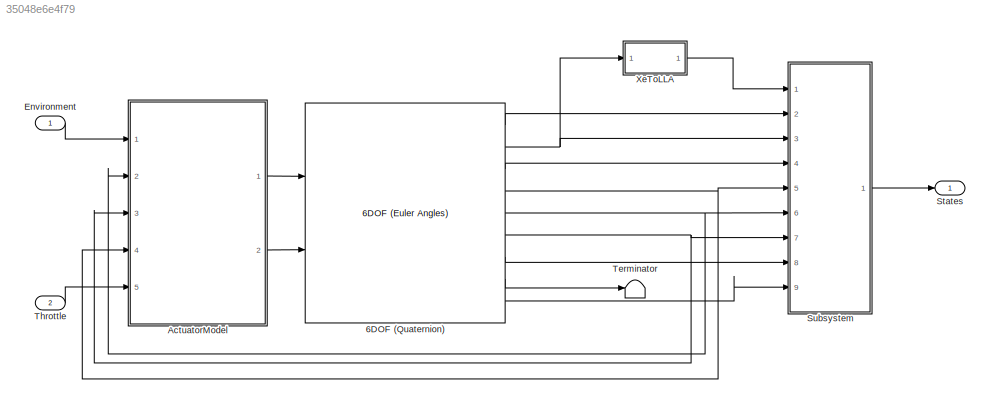
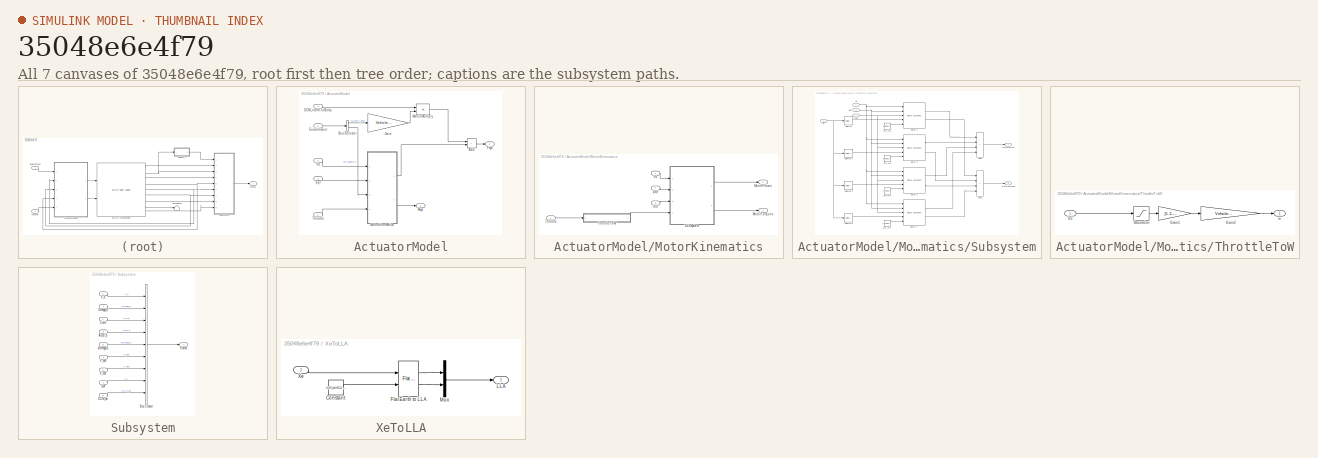
[diagram: thumbnail index - all 7 canvases of the model, root first then tree order]
MODEL slx_35048e6e4f79
KIND model
CONFIG AbsTol = auto
CONFIG EnableMultiTasking = on
CONFIG FixedStep = Ts
CONFIG MaxStep = auto
CONFIG MinStep = auto
CONFIG RelTol = 1e-3
CONFIG SampleTimeConstraint = Unconstrained
CONFIG SolverName = ode3
CONFIG StartTime = 0.0
CONFIG StopTime = 10.0
BLOCK [Reference] 6DOF (Quaternion)  REF=shared6dof/6DOF (Euler Angles)
  Ports = [2, 9]
  SourceBlock = shared6dof/6DOF (Euler Angles)
  SourceProductBaseCode = AE,PW,MT,UV,VE,VP
  SourceType = 6DOF EoM (Body Axis)
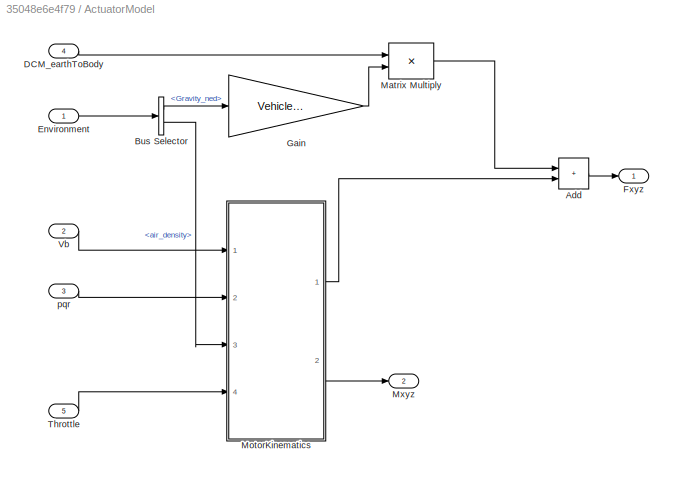
BLOCK [SubSystem] ActuatorModel
  Ports = [5, 2]
  RequestExecContextInheritance = off
BLOCK [Sum] ActuatorModel/Add
  IconShape = rectangular
  Ports = [2, 1]
BLOCK [BusSelector] ActuatorModel/Bus Selector
  OutputSignals = Gravity_ned,AtmosphereBus.air_density
  Ports = [1, 2]
BLOCK [Inport] ActuatorModel/DCM_earthToBody
  Port = 4
BLOCK [Inport] ActuatorModel/Environment
  OutDataTypeStr = Bus: EnvironmentBus
BLOCK [Outport] ActuatorModel/Fxyz
BLOCK [Gain] ActuatorModel/Gain
  Gain = Vehicle.Airframe.mass
BLOCK [Product] ActuatorModel/Matrix Multiply
  Multiplication = Matrix(*)
  Ports = [2, 1]
BLOCK [SubSystem] ActuatorModel/MotorKinematics
  Ports = [4, 2]
  RequestExecContextInheritance = off
BLOCK [Outport] ActuatorModel/MotorKinematics/MotorForces
BLOCK [Outport] ActuatorModel/MotorKinematics/MotorTorques
  Port = 2
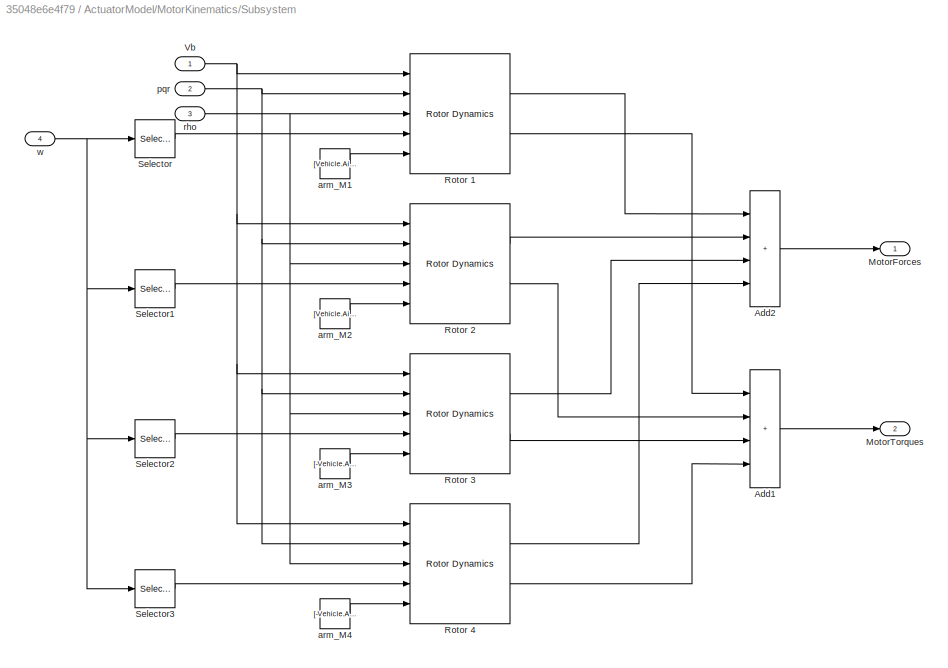
BLOCK [SubSystem] ActuatorModel/MotorKinematics/Subsystem
  Ports = [4, 2]
  RequestExecContextInheritance = off
BLOCK [Sum] ActuatorModel/MotorKinematics/Subsystem/Add1
  IconShape = rectangular
  Inputs = ++++
  Ports = [4, 1]
BLOCK [Sum] ActuatorModel/MotorKinematics/Subsystem/Add2
  IconShape = rectangular
  Inputs = ++++
  Ports = [4, 1]
BLOCK [Outport] ActuatorModel/MotorKinematics/Subsystem/MotorForces
BLOCK [Outport] ActuatorModel/MotorKinematics/Subsystem/MotorTorques
  Port = 2
BLOCK [Reference] ActuatorModel/MotorKinematics/Subsystem/Rotor 1  REF=dynamicsLibrary/Rotor Dynamics
  Ports = [5, 2]
  SourceBlock = dynamicsLibrary/Rotor Dynamics
BLOCK [Reference] ActuatorModel/MotorKinematics/Subsystem/Rotor 2  REF=dynamicsLibrary/Rotor Dynamics
  Ports = [5, 2]
  SourceBlock = dynamicsLibrary/Rotor Dynamics
BLOCK [Reference] ActuatorModel/MotorKinematics/Subsystem/Rotor 3  REF=dynamicsLibrary/Rotor Dynamics
  Ports = [5, 2]
  SourceBlock = dynamicsLibrary/Rotor Dynamics
BLOCK [Reference] ActuatorModel/MotorKinematics/Subsystem/Rotor 4  REF=dynamicsLibrary/Rotor Dynamics
  Ports = [5, 2]
  SourceBlock = dynamicsLibrary/Rotor Dynamics
BLOCK [Selector] ActuatorModel/MotorKinematics/Subsystem/Selector
  IndexOptions = Index vector (dialog)
  Indices = 1
  InputPortWidth = 4
  OutputSizes = 1
  Ports = [1, 1]
BLOCK [Selector] ActuatorModel/MotorKinematics/Subsystem/Selector1
  IndexOptions = Index vector (dialog)
  Indices = 2
  InputPortWidth = 4
  OutputSizes = 1
  Ports = [1, 1]
BLOCK [Selector] ActuatorModel/MotorKinematics/Subsystem/Selector2
  IndexOptions = Index vector (dialog)
  Indices = 3
  InputPortWidth = 4
  OutputSizes = 1
  Ports = [1, 1]
BLOCK [Selector] ActuatorModel/MotorKinematics/Subsystem/Selector3
  IndexOptions = Index vector (dialog)
  Indices = 4
  InputPortWidth = 4
  OutputSizes = 1
  Ports = [1, 1]
BLOCK [Inport] ActuatorModel/MotorKinematics/Subsystem/Vb
BLOCK [Constant] ActuatorModel/MotorKinematics/Subsystem/arm_M1
  Value = [Vehicle.Airframe.orthagPropDistance Vehicle.Airframe.orthagPropDistance Vehicle.Airframe.propHeight]
BLOCK [Constant] ActuatorModel/MotorKinematics/Subsystem/arm_M2
  Value = [Vehicle.Airframe.orthagPropDistance -Vehicle.Airframe.orthagPropDistance Vehicle.Airframe.propHeight]
BLOCK [Constant] ActuatorModel/MotorKinematics/Subsystem/arm_M3
  Value = [-Vehicle.Airframe.orthagPropDistance Vehicle.Airframe.orthagPropDistance Vehicle.Airframe.propHeight]
BLOCK [Constant] ActuatorModel/MotorKinematics/Subsystem/arm_M4
  Value = [-Vehicle.Airframe.orthagPropDistance -Vehicle.Airframe.orthagPropDistance Vehicle.Airframe.propHeight]
BLOCK [Inport] ActuatorModel/MotorKinematics/Subsystem/pqr
  Port = 2
BLOCK [Inport] ActuatorModel/MotorKinematics/Subsystem/rho
  Port = 3
BLOCK [Inport] ActuatorModel/MotorKinematics/Subsystem/w
  Port = 4
BLOCK [Inport] ActuatorModel/MotorKinematics/Throttle
  Port = 4
BLOCK [SubSystem] ActuatorModel/MotorKinematics/ThrottleToW
  Ports = [1, 1]
  RequestExecContextInheritance = off
BLOCK [Gain] ActuatorModel/MotorKinematics/ThrottleToW/Gain1
  Gain = [1 -1 -1 1]
BLOCK [Gain] ActuatorModel/MotorKinematics/ThrottleToW/Gain2
  Gain = Vehicle.Motor.Throttle2w
BLOCK [Inport] ActuatorModel/MotorKinematics/ThrottleToW/In1
BLOCK [Saturate] ActuatorModel/MotorKinematics/ThrottleToW/Saturation
  LinearizeAsGain = off
  LowerLimit = Vehicle.Motor.minSignal
  UpperLimit = Vehicle.Motor.maxSignal
BLOCK [Outport] ActuatorModel/MotorKinematics/ThrottleToW/w
BLOCK [Inport] ActuatorModel/MotorKinematics/Vb
BLOCK [Inport] ActuatorModel/MotorKinematics/pqr
  Port = 2
BLOCK [Inport] ActuatorModel/MotorKinematics/rho
  Port = 3
BLOCK [Outport] ActuatorModel/Mxyz
  Port = 2
BLOCK [Inport] ActuatorModel/Throttle
  Port = 5
BLOCK [Inport] ActuatorModel/Vb
  Port = 2
BLOCK [Inport] ActuatorModel/pqr
  Port = 3
BLOCK [Inport] Environment
  Interpolate = off
  OutDataTypeStr = Bus: EnvironmentBus
BLOCK [Outport] States
  OutDataTypeStr = Bus: StatesBus
BLOCK [SubSystem] Subsystem
  Ports = [9, 1]
  RequestExecContextInheritance = off
BLOCK [Inport] Subsystem/Accel_b
  Port = 9
BLOCK [BusCreator] Subsystem/Bus Creator
  DisplayOption = bar
  InheritFromInputs = off
  Inputs = 9
  OutDataTypeStr = Bus: StatesBus
  Ports = [9, 1]
BLOCK [Inport] Subsystem/DCM_be
  Port = 5
BLOCK [Inport] Subsystem/Euler
  Port = 4
BLOCK [Inport] Subsystem/LLA
BLOCK [Inport] Subsystem/Omega_b
  Port = 7
BLOCK [Outport] Subsystem/States
BLOCK [Inport] Subsystem/V_b
  Port = 6
BLOCK [Inport] Subsystem/V_ned
  Port = 2
BLOCK [Inport] Subsystem/X_ned
  Port = 3
BLOCK [Inport] Subsystem/dOmega_b
  Port = 8
BLOCK [Terminator] Terminator
BLOCK [Inport] Throttle
  Port = 2
  PortDimensions = [1 4]
BLOCK [SubSystem] XeToLLA
  Ports = [1, 1]
  RequestExecContextInheritance = off
BLOCK [Constant] XeToLLA/Constant
  Value = -init.posLLA(3)
BLOCK [Reference] XeToLLA/Flat Earth to LLA  REF=aerolibtransform2/Flat Earth to LLA
  Ports = [2, 2]
  SourceBlock = aerolibtransform2/Flat Earth to LLA
  SourceProductBaseCode = AE
  SourceType = Flat Earth to LLA
BLOCK [Outport] XeToLLA/LLA
BLOCK [Mux] XeToLLA/Mux
  DisplayOption = bar
  Inputs = 2
  Ports = [2, 1]
BLOCK [Inport] XeToLLA/Xe
LINE 6DOF (Quaternion):1 -> Subsystem:2
NET 6DOF (Quaternion):2 -> Subsystem:3, XeToLLA:1
LINE 6DOF (Quaternion):3 -> Subsystem:4
NET 6DOF (Quaternion):4 -> ActuatorModel:4, Subsystem:5
NET 6DOF (Quaternion):5 -> ActuatorModel:2, Subsystem:6
NET 6DOF (Quaternion):6 -> ActuatorModel:3, Subsystem:7
LINE 6DOF (Quaternion):7 -> Subsystem:8
LINE 6DOF (Quaternion):8 -> Terminator:1
LINE 6DOF (Quaternion):9 -> Subsystem:9
LINE ActuatorModel/Add:1 -> ActuatorModel/Fxyz:1
LINE ActuatorModel/Bus Selector:1 -> ActuatorModel/Gain:1
LINE ActuatorModel/Bus Selector:2 -> ActuatorModel/MotorKinematics:3
LINE ActuatorModel/DCM_earthToBody:1 -> ActuatorModel/Matrix Multiply:1
LINE ActuatorModel/Environment:1 -> ActuatorModel/Bus Selector:1
LINE ActuatorModel/Gain:1 -> ActuatorModel/Matrix Multiply:2
LINE ActuatorModel/Matrix Multiply:1 -> ActuatorModel/Add:1
LINE ActuatorModel/MotorKinematics/Subsystem/Add1:1 -> ActuatorModel/MotorKinematics/Subsystem/MotorTorques:1
LINE ActuatorModel/MotorKinematics/Subsystem/Add2:1 -> ActuatorModel/MotorKinematics/Subsystem/MotorForces:1
LINE ActuatorModel/MotorKinematics/Subsystem/Rotor 1:1 -> ActuatorModel/MotorKinematics/Subsystem/Add2:1
LINE ActuatorModel/MotorKinematics/Subsystem/Rotor 1:2 -> ActuatorModel/MotorKinematics/Subsystem/Add1:1
LINE ActuatorModel/MotorKinematics/Subsystem/Rotor 2:1 -> ActuatorModel/MotorKinematics/Subsystem/Add2:2
LINE ActuatorModel/MotorKinematics/Subsystem/Rotor 2:2 -> ActuatorModel/MotorKinematics/Subsystem/Add1:2
LINE ActuatorModel/MotorKinematics/Subsystem/Rotor 3:1 -> ActuatorModel/MotorKinematics/Subsystem/Add2:3
LINE ActuatorModel/MotorKinematics/Subsystem/Rotor 3:2 -> ActuatorModel/MotorKinematics/Subsystem/Add1:3
LINE ActuatorModel/MotorKinematics/Subsystem/Rotor 4:1 -> ActuatorModel/MotorKinematics/Subsystem/Add2:4
LINE ActuatorModel/MotorKinematics/Subsystem/Rotor 4:2 -> ActuatorModel/MotorKinematics/Subsystem/Add1:4
LINE ActuatorModel/MotorKinematics/Subsystem/Selector1:1 -> ActuatorModel/MotorKinematics/Subsystem/Rotor 2:4
LINE ActuatorModel/MotorKinematics/Subsystem/Selector2:1 -> ActuatorModel/MotorKinematics/Subsystem/Rotor 3:4
LINE ActuatorModel/MotorKinematics/Subsystem/Selector3:1 -> ActuatorModel/MotorKinematics/Subsystem/Rotor 4:4
LINE ActuatorModel/MotorKinematics/Subsystem/Selector:1 -> ActuatorModel/MotorKinematics/Subsystem/Rotor 1:4
NET ActuatorModel/MotorKinematics/Subsystem/Vb:1 -> ActuatorModel/MotorKinematics/Subsystem/Rotor 1:1, ActuatorModel/MotorKinematics/Subsystem/Rotor 2:1, ActuatorModel/MotorKinematics/Subsystem/Rotor 3:1, ActuatorModel/MotorKinematics/Subsystem/Rotor 4:1
LINE ActuatorModel/MotorKinematics/Subsystem/arm_M1:1 -> ActuatorModel/MotorKinematics/Subsystem/Rotor 1:5
LINE ActuatorModel/MotorKinematics/Subsystem/arm_M2:1 -> ActuatorModel/MotorKinematics/Subsystem/Rotor 2:5
LINE ActuatorModel/MotorKinematics/Subsystem/arm_M3:1 -> ActuatorModel/MotorKinematics/Subsystem/Rotor 3:5
LINE ActuatorModel/MotorKinematics/Subsystem/arm_M4:1 -> ActuatorModel/MotorKinematics/Subsystem/Rotor 4:5
NET ActuatorModel/MotorKinematics/Subsystem/pqr:1 -> ActuatorModel/MotorKinematics/Subsystem/Rotor 1:2, ActuatorModel/MotorKinematics/Subsystem/Rotor 2:2, ActuatorModel/MotorKinematics/Subsystem/Rotor 3:2, ActuatorModel/MotorKinematics/Subsystem/Rotor 4:2
NET ActuatorModel/MotorKinematics/Subsystem/rho:1 -> ActuatorModel/MotorKinematics/Subsystem/Rotor 1:3, ActuatorModel/MotorKinematics/Subsystem/Rotor 2:3, ActuatorModel/MotorKinematics/Subsystem/Rotor 3:3, ActuatorModel/MotorKinematics/Subsystem/Rotor 4:3
NET ActuatorModel/MotorKinematics/Subsystem/w:1 -> ActuatorModel/MotorKinematics/Subsystem/Selector1:1, ActuatorModel/MotorKinematics/Subsystem/Selector2:1, ActuatorModel/MotorKinematics/Subsystem/Selector3:1, ActuatorModel/MotorKinematics/Subsystem/Selector:1
LINE ActuatorModel/MotorKinematics/Subsystem:1 -> ActuatorModel/MotorKinematics/MotorForces:1
LINE ActuatorModel/MotorKinematics/Subsystem:2 -> ActuatorModel/MotorKinematics/MotorTorques:1
LINE ActuatorModel/MotorKinematics/Throttle:1 -> ActuatorModel/MotorKinematics/ThrottleToW:1
LINE ActuatorModel/MotorKinematics/ThrottleToW/Gain1:1 -> ActuatorModel/MotorKinematics/ThrottleToW/Gain2:1
LINE ActuatorModel/MotorKinematics/ThrottleToW/Gain2:1 -> ActuatorModel/MotorKinematics/ThrottleToW/w:1
LINE ActuatorModel/MotorKinematics/ThrottleToW/In1:1 -> ActuatorModel/MotorKinematics/ThrottleToW/Saturation:1
LINE ActuatorModel/MotorKinematics/ThrottleToW/Saturation:1 -> ActuatorModel/MotorKinematics/ThrottleToW/Gain1:1
LINE ActuatorModel/MotorKinematics/ThrottleToW:1 -> ActuatorModel/MotorKinematics/Subsystem:4
LINE ActuatorModel/MotorKinematics/Vb:1 -> ActuatorModel/MotorKinematics/Subsystem:1
LINE ActuatorModel/MotorKinematics/pqr:1 -> ActuatorModel/MotorKinematics/Subsystem:2
LINE ActuatorModel/MotorKinematics/rho:1 -> ActuatorModel/MotorKinematics/Subsystem:3
LINE ActuatorModel/MotorKinematics:1 -> ActuatorModel/Add:2
LINE ActuatorModel/MotorKinematics:2 -> ActuatorModel/Mxyz:1
LINE ActuatorModel/Throttle:1 -> ActuatorModel/MotorKinematics:4
LINE ActuatorModel/Vb:1 -> ActuatorModel/MotorKinematics:1
LINE ActuatorModel/pqr:1 -> ActuatorModel/MotorKinematics:2
LINE ActuatorModel:1 -> 6DOF (Quaternion):1
LINE ActuatorModel:2 -> 6DOF (Quaternion):2
LINE Environment:1 -> ActuatorModel:1
LINE Subsystem/Accel_b:1 -> Subsystem/Bus Creator:4
LINE Subsystem/Bus Creator:1 -> Subsystem/States:1
LINE Subsystem/DCM_be:1 -> Subsystem/Bus Creator:9
LINE Subsystem/Euler:1 -> Subsystem/Bus Creator:3
LINE Subsystem/LLA:1 -> Subsystem/Bus Creator:8
LINE Subsystem/Omega_b:1 -> Subsystem/Bus Creator:2
LINE Subsystem/V_b:1 -> Subsystem/Bus Creator:1
LINE Subsystem/V_ned:1 -> Subsystem/Bus Creator:6
LINE Subsystem/X_ned:1 -> Subsystem/Bus Creator:7
LINE Subsystem/dOmega_b:1 -> Subsystem/Bus Creator:5
LINE Subsystem:1 -> States:1
LINE Throttle:1 -> ActuatorModel:5
LINE XeToLLA/Constant:1 -> XeToLLA/Flat Earth to LLA:2
LINE XeToLLA/Flat Earth to LLA:1 -> XeToLLA/Mux:1
LINE XeToLLA/Flat Earth to LLA:2 -> XeToLLA/Mux:2
LINE XeToLLA/Mux:1 -> XeToLLA/LLA:1
LINE XeToLLA/Xe:1 -> XeToLLA/Flat Earth to LLA:1
LINE XeToLLA:1 -> Subsystem:1
note: NET lines group one-source signal fan-out (src -> all destinations, sorted); 1:1 wires keep LINE
